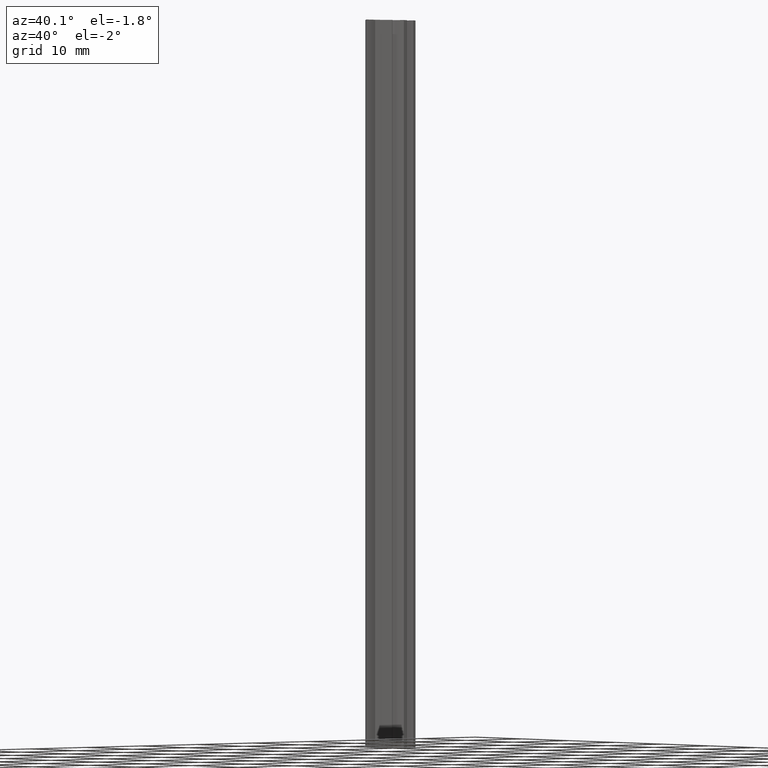
[diagram: clean part render]
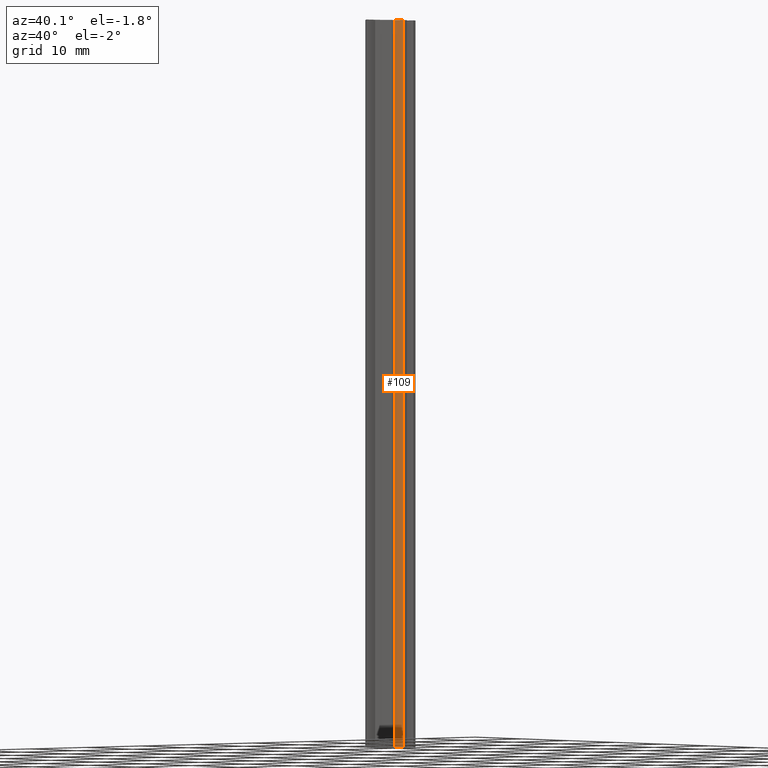
[diagram: same view with one face highlighted and labeled with its STEP entity id]
A machine part, auxiliary view. The second image highlights one B-rep face of the part: STEP entity #109.
In plain terms, the highlighted cylindrical surface (partial cylindrical patch) has radius 6.8827 mm, axis along (0, 0, 1).
Its self-contained STEP definition (entity closure, byte-faithful):
#49=CARTESIAN_POINT('',(1.272140242813293,4.559973585878652,0.0));
#50=VERTEX_POINT('',#49);
#58=CARTESIAN_POINT('',(1.272140242813293,4.559973585878652,100.0));
#59=VERTEX_POINT('',#58);
#60=CARTESIAN_POINT('',(1.272140242813293,4.559973585878652,0.0));
#61=DIRECTION('',(0.0,0.0,1.0));
#62=VECTOR('',#61,100.0);
#63=LINE('',#60,#62);
#64=EDGE_CURVE('',#50,#59,#63,.T.);
#77=CARTESIAN_POINT('',(-0.615026702402702,11.178847048970965,0.0));
#78=DIRECTION('',(0.0,0.0,1.0));
#79=DIRECTION('',(1.0,0.0,0.0));
#80=AXIS2_PLACEMENT_3D('',#77,#78,#79);
#81=CYLINDRICAL_SURFACE('',#80,6.882651015382542);
#82=CARTESIAN_POINT('',(2.351141311599349,4.968152054668281,0.0));
#83=VERTEX_POINT('',#82);
#84=CARTESIAN_POINT('',(-0.615026702402702,11.178847048970965,0.0));
#85=DIRECTION('',(0.0,0.0,1.0));
#86=DIRECTION('',(1.0,0.0,0.0));
#87=AXIS2_PLACEMENT_3D('',#84,#85,#86);
#88=CIRCLE('',#87,6.882651015382542);
#89=EDGE_CURVE('',#50,#83,#88,.T.);
#90=ORIENTED_EDGE('',*,*,#89,.T.);
#91=CARTESIAN_POINT('',(2.351141311599349,4.968152054668281,100.0));
#92=VERTEX_POINT('',#91);
#93=CARTESIAN_POINT('',(2.351141311599349,4.968152054668281,0.0));
#94=DIRECTION('',(0.0,0.0,1.0));
#95=VECTOR('',#94,100.0);
#96=LINE('',#93,#95);
#97=EDGE_CURVE('',#83,#92,#96,.T.);
#98=ORIENTED_EDGE('',*,*,#97,.T.);
#99=CARTESIAN_POINT('',(-0.615026702402702,11.178847048970965,100.0));
#100=DIRECTION('',(0.0,0.0,1.0));
#101=DIRECTION('',(1.0,0.0,0.0));
#102=AXIS2_PLACEMENT_3D('',#99,#100,#101);
#103=CIRCLE('',#102,6.882651015382542);
#104=EDGE_CURVE('',#59,#92,#103,.T.);
#105=ORIENTED_EDGE('',*,*,#104,.F.);
#106=ORIENTED_EDGE('',*,*,#64,.F.);
#107=EDGE_LOOP('',(#90,#98,#105,#106));
#108=FACE_OUTER_BOUND('',#107,.T.);
#109=ADVANCED_FACE('',(#108),#81,.T.);